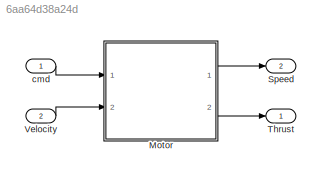
MODEL slx_6aa64d38a24d
KIND model
CONFIG AbsTol = auto
CONFIG EnableMultiTasking = off
CONFIG FixedStep = interval
CONFIG MaxStep = auto
CONFIG MinStep = auto
CONFIG RelTol = 1e-3
CONFIG SampleTimeConstraint = Unconstrained
CONFIG Solver = FixedStepAuto
CONFIG SolverName = FixedStepAuto
CONFIG StartTime = 0.0
CONFIG StopTime = 10.0
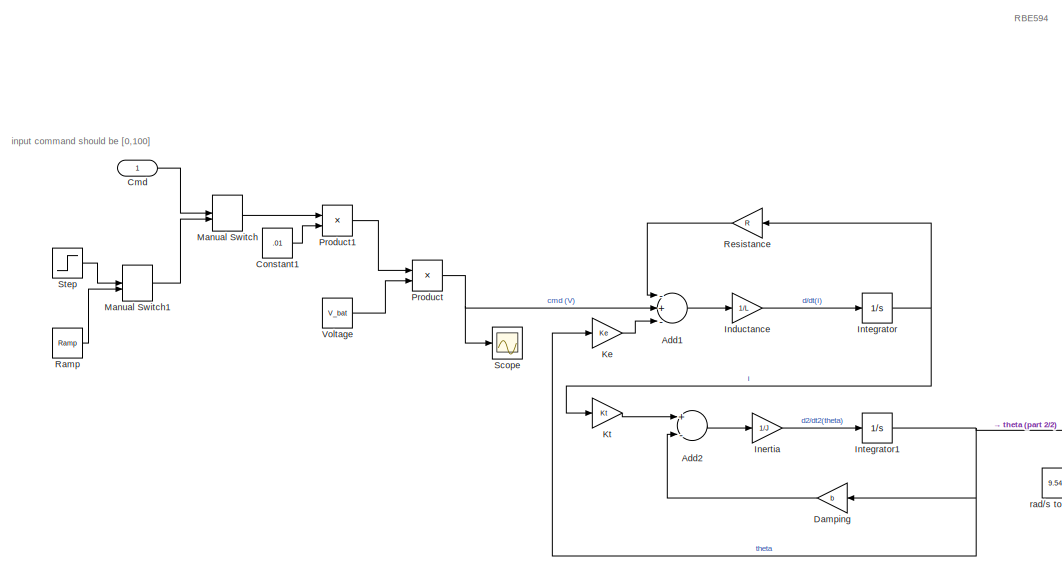
[diagram: Motor - part 1/2, middle left region]
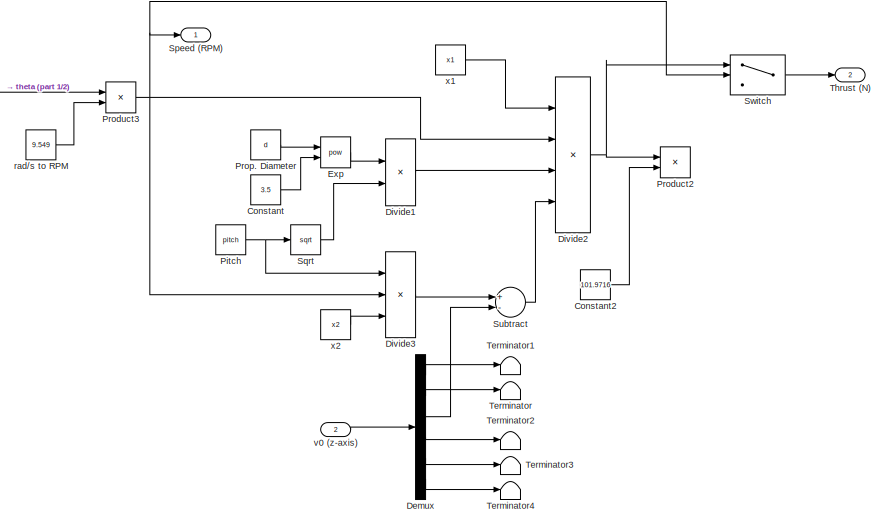
[diagram: Motor - part 2/2, bottom right region]
BLOCK [SubSystem] Motor
  Ports = [2, 2]
  RequestExecContextInheritance = off
  Variant = off
BLOCK [Sum] Motor/Add1
  InputSameDT = off
  Inputs = -+-
  OutDataTypeStr = Inherit: Inherit via internal rule
  Ports = [3, 1]
  SaturateOnIntegerOverflow = off
BLOCK [Sum] Motor/Add2
  InputSameDT = off
  Inputs = +-
  OutDataTypeStr = Inherit: Inherit via internal rule
  Ports = [2, 1]
  SaturateOnIntegerOverflow = off
BLOCK [Inport] Motor/Cmd
  IconDisplay = Port number
  OutMax = [100]
  OutMin = [0]
BLOCK [Constant] Motor/Constant
  Value = 3.5
BLOCK [Constant] Motor/Constant1
  Value = .01
BLOCK [Constant] Motor/Constant2
  Value = 101.9716
BLOCK [Gain] Motor/Damping
  Gain = b
  OutDataTypeStr = Inherit: Inherit via internal rule
  ParamDataTypeStr = Inherit: Inherit via internal rule
  SaturateOnIntegerOverflow = off
BLOCK [Demux] Motor/Demux
  DisplayOption = bar
  Outputs = 6
  Ports = [1, 6]
BLOCK [Product] Motor/Divide1
  InputSameDT = off
  Inputs = */
  OutDataTypeStr = Inherit: Inherit via internal rule
  Ports = [2, 1]
  RndMeth = Floor
  SaturateOnIntegerOverflow = off
BLOCK [Product] Motor/Divide2
  InputSameDT = off
  Inputs = ****
  OutDataTypeStr = Inherit: Inherit via internal rule
  Ports = [4, 1]
  RndMeth = Floor
  SaturateOnIntegerOverflow = off
BLOCK [Product] Motor/Divide3
  InputSameDT = off
  Inputs = ***
  OutDataTypeStr = Inherit: Inherit via internal rule
  Ports = [3, 1]
  RndMeth = Floor
  SaturateOnIntegerOverflow = off
BLOCK [Math] Motor/Exp
  Operator = pow
  Ports = [2, 1]
BLOCK [Gain] Motor/Inductance
  Gain = 1/L
  OutDataTypeStr = Inherit: Inherit via internal rule
  ParamDataTypeStr = Inherit: Inherit via internal rule
  SaturateOnIntegerOverflow = off
BLOCK [Gain] Motor/Inertia
  Gain = 1/J
  OutDataTypeStr = Inherit: Inherit via internal rule
  ParamDataTypeStr = Inherit: Inherit via internal rule
  SaturateOnIntegerOverflow = off
BLOCK [Integrator] Motor/Integrator
  Ports = [1, 1]
BLOCK [Integrator] Motor/Integrator1
  Ports = [1, 1]
BLOCK [Gain] Motor/Ke
  Gain = Ke
  OutDataTypeStr = Inherit: Inherit via internal rule
  ParamDataTypeStr = Inherit: Inherit via internal rule
  SaturateOnIntegerOverflow = off
BLOCK [Gain] Motor/Kt
  Gain = Kt
  OutDataTypeStr = Inherit: Inherit via internal rule
  ParamDataTypeStr = Inherit: Inherit via internal rule
  SaturateOnIntegerOverflow = off
BLOCK [ManualSwitch] Motor/Manual Switch
BLOCK [ManualSwitch] Motor/Manual Switch1
  CurrentSetting = 0
BLOCK [Constant] Motor/Pitch
  Value = pitch
BLOCK [Product] Motor/Product
  InputSameDT = off
  OutDataTypeStr = Inherit: Inherit via internal rule
  Ports = [2, 1]
  RndMeth = Floor
  SaturateOnIntegerOverflow = off
BLOCK [Product] Motor/Product1
  InputSameDT = off
  OutDataTypeStr = Inherit: Inherit via internal rule
  Ports = [2, 1]
  RndMeth = Floor
  SaturateOnIntegerOverflow = off
BLOCK [Product] Motor/Product2
  InputSameDT = off
  OutDataTypeStr = Inherit: Inherit via internal rule
  Ports = [2, 1]
  RndMeth = Floor
  SaturateOnIntegerOverflow = off
BLOCK [Product] Motor/Product3
  InputSameDT = off
  OutDataTypeStr = Inherit: Inherit via internal rule
  Ports = [2, 1]
  RndMeth = Floor
  SaturateOnIntegerOverflow = off
BLOCK [Constant] Motor/Prop. Diameter
  Value = d
BLOCK [Reference] Motor/Ramp  REF=simulink/Sources/Ramp
  Ports = [0, 1]
  SourceBlock = simulink/Sources/Ramp
  SourceProductBaseCode = SL
  SourceProductName = Simulink
  SourceType = Ramp
BLOCK [Gain] Motor/Resistance
  Gain = R
  OutDataTypeStr = Inherit: Inherit via internal rule
  ParamDataTypeStr = Inherit: Inherit via internal rule
  SaturateOnIntegerOverflow = off
BLOCK [Scope] Motor/Scope
  NumInputPorts = 1
  Ports = [1]
  ScopeSpecificationString = Simulink.scopes.TimeScopeBlockCfg('CurrentConfiguration', extmgr.ConfigurationSet(extmgr.Configuration('Core','General UI',true),extmgr.Configuration('Core','Source UI',true),extmgr.Configuration('Sources','WiredSimulink',true),extmgr.Configuration('Visuals','Time Domain',true,'SerializedDisplays',{struct('MinYLimReal','-5.4945','MaxYLimReal','49.4505','YLabelReal','','MinYLimMag','0.00000','MaxYL...<+1325ch>
BLOCK [Outport] Motor/Speed (RPM)
  IconDisplay = Port number
BLOCK [Sqrt] Motor/Sqrt
BLOCK [Step] Motor/Step
  After = 100
  SampleTime = 0
BLOCK [Sum] Motor/Subtract
  InputSameDT = off
  Inputs = +-
  OutDataTypeStr = Inherit: Inherit via internal rule
  Ports = [2, 1]
  SaturateOnIntegerOverflow = off
BLOCK [Switch] Motor/Switch
  Criteria = u2 > Threshold
  InputSameDT = off
  SaturateOnIntegerOverflow = off
  Threshold = 800
BLOCK [Terminator] Motor/Terminator
BLOCK [Terminator] Motor/Terminator1
BLOCK [Terminator] Motor/Terminator2
BLOCK [Terminator] Motor/Terminator3
BLOCK [Terminator] Motor/Terminator4
BLOCK [Outport] Motor/Thrust (N)
  IconDisplay = Port number
  Port = 2
BLOCK [Constant] Motor/Voltage
  Value = V_bat
BLOCK [Constant] Motor/rad//s to RPM
  Value = 9.549
BLOCK [Inport] Motor/v0 (z-axis)
  IconDisplay = Port number
  OutMax = [1]
  OutMin = [0]
  Port = 2
BLOCK [Constant] Motor/x1
  Value = x1
BLOCK [Constant] Motor/x2
  Value = x2
BLOCK [Outport] Speed
  IconDisplay = Port number
  Port = 2
BLOCK [Outport] Thrust
  IconDisplay = Port number
BLOCK [Inport] Velocity
  IconDisplay = Port number
  Port = 2
BLOCK [Inport] cmd
  IconDisplay = Port number
ANNOTATION Motor: RBE594
ANNOTATION Motor: input command should be [0,100]
LINE Motor/Add1:1 -> Motor/Inductance:1
LINE Motor/Add2:1 -> Motor/Inertia:1
LINE Motor/Cmd:1 -> Motor/Manual Switch:1
LINE Motor/Constant1:1 -> Motor/Product1:2
LINE Motor/Constant2:1 -> Motor/Product2:2
LINE Motor/Constant:1 -> Motor/Exp:2
LINE Motor/Damping:1 -> Motor/Add2:2
LINE Motor/Demux:1 -> Motor/Terminator1:1
LINE Motor/Demux:2 -> Motor/Terminator:1
LINE Motor/Demux:3 -> Motor/Subtract:2
LINE Motor/Demux:4 -> Motor/Terminator2:1
LINE Motor/Demux:5 -> Motor/Terminator3:1
LINE Motor/Demux:6 -> Motor/Terminator4:1
LINE Motor/Divide1:1 -> Motor/Divide2:3
NET Motor/Divide2:1 -> Motor/Product2:1, Motor/Switch:1
LINE Motor/Divide3:1 -> Motor/Subtract:1
LINE Motor/Exp:1 -> Motor/Divide1:1
LINE Motor/Inductance:1 -> Motor/Integrator:1
LINE Motor/Inertia:1 -> Motor/Integrator1:1
NET Motor/Integrator1:1 -> Motor/Damping:1, Motor/Ke:1, Motor/Product3:1
NET Motor/Integrator:1 -> Motor/Kt:1, Motor/Resistance:1
LINE Motor/Ke:1 -> Motor/Add1:3
LINE Motor/Kt:1 -> Motor/Add2:1
LINE Motor/Manual Switch1:1 -> Motor/Manual Switch:2
LINE Motor/Manual Switch:1 -> Motor/Product1:1
NET Motor/Pitch:1 -> Motor/Divide3:1, Motor/Sqrt:1
LINE Motor/Product1:1 -> Motor/Product:1
NET Motor/Product3:1 -> Motor/Divide2:2, Motor/Divide3:2, Motor/Speed (RPM):1, Motor/Switch:2
NET Motor/Product:1 -> Motor/Add1:2, Motor/Scope:1
LINE Motor/Prop. Diameter:1 -> Motor/Exp:1
LINE Motor/Ramp:1 -> Motor/Manual Switch1:2
LINE Motor/Resistance:1 -> Motor/Add1:1
LINE Motor/Sqrt:1 -> Motor/Divide1:2
LINE Motor/Step:1 -> Motor/Manual Switch1:1
LINE Motor/Subtract:1 -> Motor/Divide2:4
LINE Motor/Switch:1 -> Motor/Thrust (N):1
LINE Motor/Voltage:1 -> Motor/Product:2
LINE Motor/rad//s to RPM:1 -> Motor/Product3:2
LINE Motor/v0 (z-axis):1 -> Motor/Demux:1
LINE Motor/x1:1 -> Motor/Divide2:1
LINE Motor/x2:1 -> Motor/Divide3:3
LINE Motor:1 -> Speed:1
LINE Motor:2 -> Thrust:1
LINE Velocity:1 -> Motor:2
LINE cmd:1 -> Motor:1
note: NET lines group one-source signal fan-out (src -> all destinations, sorted); 1:1 wires keep LINE
